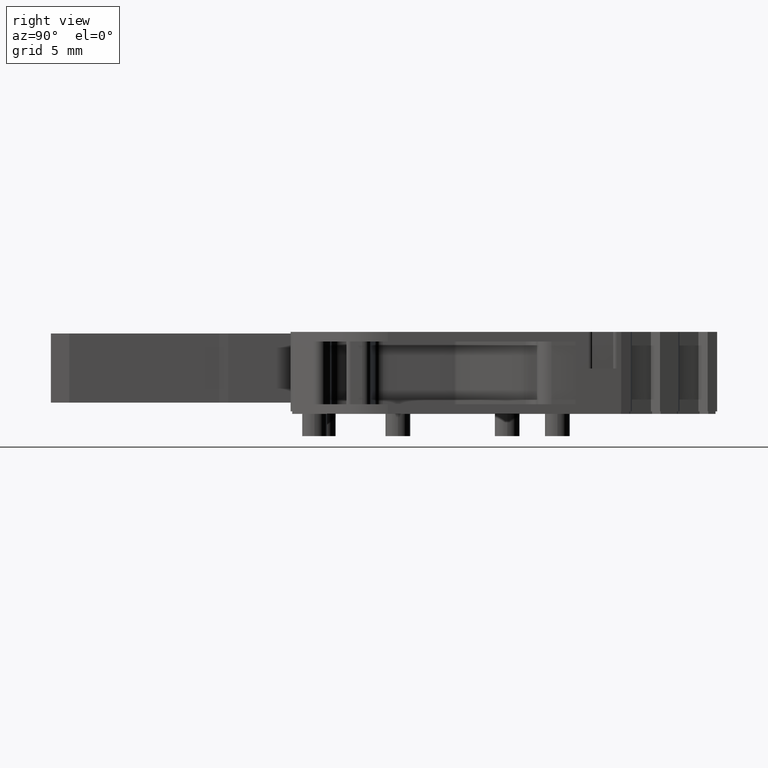
[diagram: clean part render]
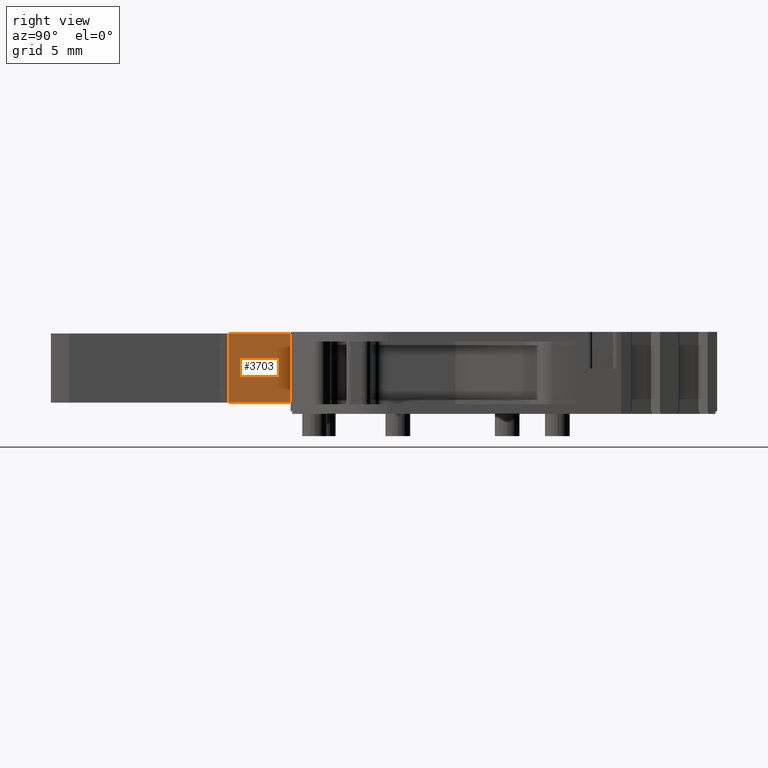
[diagram: same view with one face highlighted and labeled with its STEP entity id]
A machine part, right view. The second image highlights one B-rep face of the part: STEP entity #3703.
In plain terms, the highlighted planar face has unit normal (1, 0, -0).
Its self-contained STEP definition (entity closure, byte-faithful):
#356 = ORIENTED_EDGE ( 'NONE', *, *, #6238, .T. ) ;
#362 = EDGE_CURVE ( 'NONE', #3686, #1885, #6738, .T. ) ;
#748 = ORIENTED_EDGE ( 'NONE', *, *, #7600, .T. ) ;
#1215 = VECTOR ( 'NONE', #4954, 1000.000000000000000 ) ;
#1293 = ORIENTED_EDGE ( 'NONE', *, *, #362, .T. ) ;
#1454 = CARTESIAN_POINT ( 'NONE',  ( -15.34598760276527500, 3.861123162477171800, 2.055851566870936500 ) ) ;
#1839 = EDGE_CURVE ( 'NONE', #7548, #5705, #8301, .T. ) ;
#1840 = FACE_OUTER_BOUND ( 'NONE', #4487, .T. ) ;
#1885 = VERTEX_POINT ( 'NONE', #4125 ) ;
#2082 = DIRECTION ( 'NONE',  ( -2.207871491351069800E-016, 1.000000000000000000, 0.0000000000000000000 ) ) ;
#2103 = AXIS2_PLACEMENT_3D ( 'NONE', #8276, #2775, #2082 ) ;
#2359 = CARTESIAN_POINT ( 'NONE',  ( -15.34598760276527700, 7.789620547339174200, -2.294148433129063100 ) ) ;
#2499 = CARTESIAN_POINT ( 'NONE',  ( -15.34598760276527700, 7.789620547339174200, 2.055851566870936500 ) ) ;
#2775 = DIRECTION ( 'NONE',  ( 1.000000000000000000, 2.207871491351069800E-016, -0.0000000000000000000 ) ) ;
#3686 = VERTEX_POINT ( 'NONE', #5443 ) ;
#3703 = ADVANCED_FACE ( 'NONE', ( #1840 ), #5527, .T. ) ;
#3749 = DIRECTION ( 'NONE',  ( -2.207871491351069800E-016, 1.000000000000000000, 0.0000000000000000000 ) ) ;
#4125 = CARTESIAN_POINT ( 'NONE',  ( -15.34598760276527900, 7.789620547339092500, 2.055851566870938300 ) ) ;
#4487 = EDGE_LOOP ( 'NONE', ( #1293, #356, #5858, #748 ) ) ;
#4954 = DIRECTION ( 'NONE',  ( 0.0000000000000000000, 0.0000000000000000000, 1.000000000000000000 ) ) ;
#5017 = VECTOR ( 'NONE', #3749, 1000.000000000000000 ) ;
#5443 = CARTESIAN_POINT ( 'NONE',  ( -15.34598760276527700, 7.789620547339091600, -2.294148433129063100 ) ) ;
#5527 = PLANE ( 'NONE',  #2103 ) ;
#5616 = CARTESIAN_POINT ( 'NONE',  ( -15.34598760276527700, 3.861123162477166500, -2.294148433129063100 ) ) ;
#5705 = VERTEX_POINT ( 'NONE', #5616 ) ;
#5858 = ORIENTED_EDGE ( 'NONE', *, *, #1839, .T. ) ;
#5897 = DIRECTION ( 'NONE',  ( -0.0000000000000000000, -0.0000000000000000000, -1.000000000000000000 ) ) ;
#5974 = DIRECTION ( 'NONE',  ( 2.207871491351069800E-016, -1.000000000000000000, -0.0000000000000000000 ) ) ;
#6238 = EDGE_CURVE ( 'NONE', #1885, #7548, #7942, .T. ) ;
#6321 = LINE ( 'NONE', #2359, #5017 ) ;
#6678 = CARTESIAN_POINT ( 'NONE',  ( -15.34598760276527500, 3.861123162477171800, -6.794426202334086000 ) ) ;
#6738 = LINE ( 'NONE', #7664, #1215 ) ;
#7532 = VECTOR ( 'NONE', #5897, 1000.000000000000000 ) ;
#7548 = VERTEX_POINT ( 'NONE', #1454 ) ;
#7600 = EDGE_CURVE ( 'NONE', #5705, #3686, #6321, .T. ) ;
#7664 = CARTESIAN_POINT ( 'NONE',  ( -15.34598760276527900, 7.789620547339091600, 2.155851566870937000 ) ) ;
#7942 = LINE ( 'NONE', #2499, #8604 ) ;
#8276 = CARTESIAN_POINT ( 'NONE',  ( -15.34598760276527700, 7.789620547339174200, -6.794426202334086000 ) ) ;
#8301 = LINE ( 'NONE', #6678, #7532 ) ;
#8604 = VECTOR ( 'NONE', #5974, 1000.000000000000000 ) ;